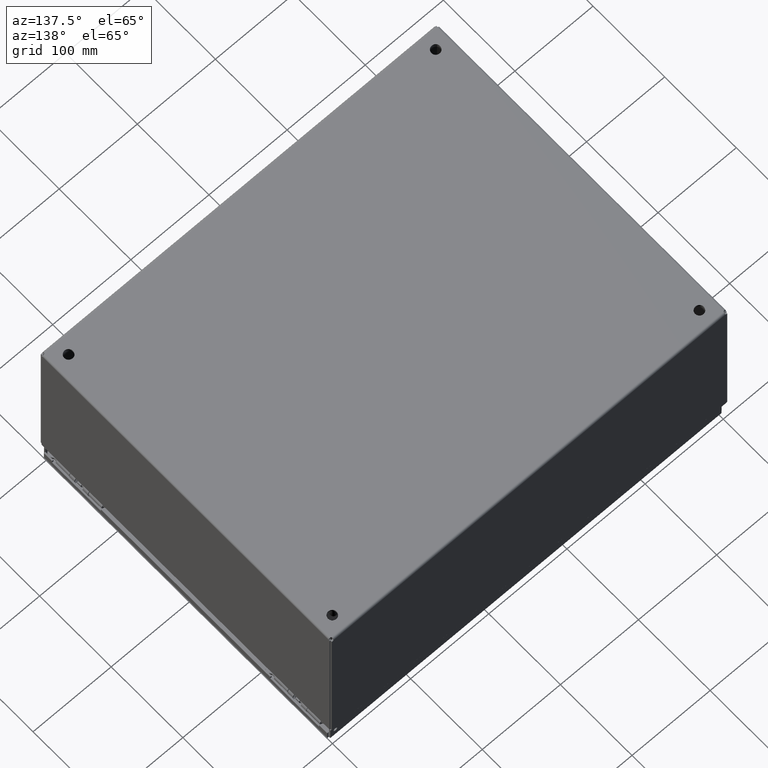
[diagram: clean part render]
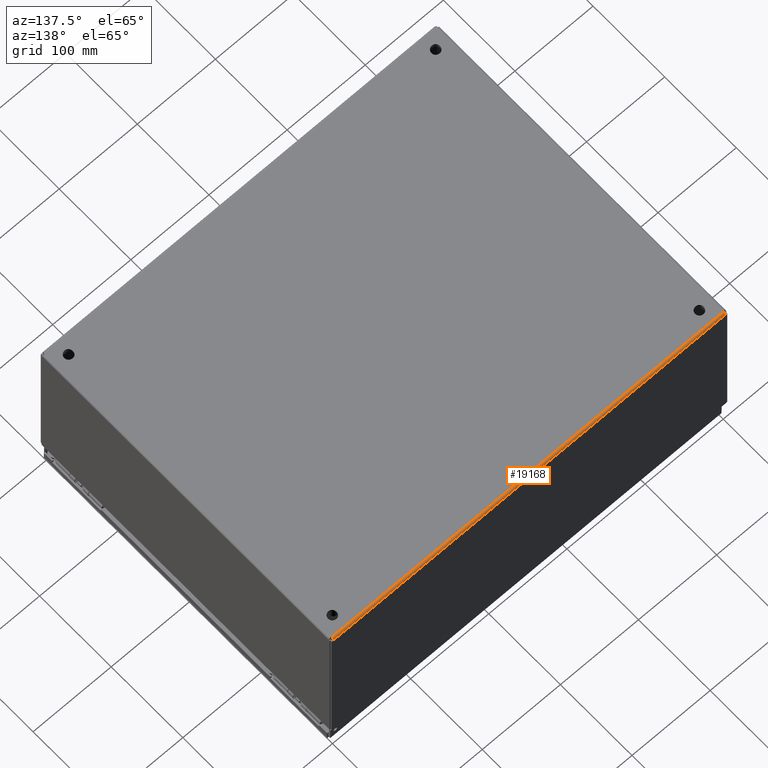
[diagram: same view with one face highlighted and labeled with its STEP entity id]
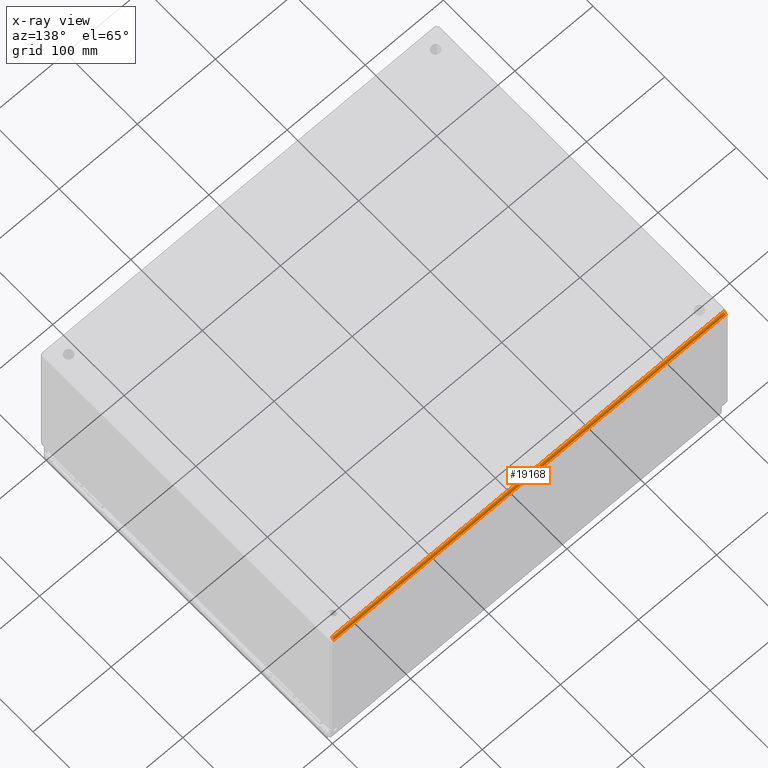
[diagram: x-ray of the same camera — body ghosted, the highlighted face saturated]
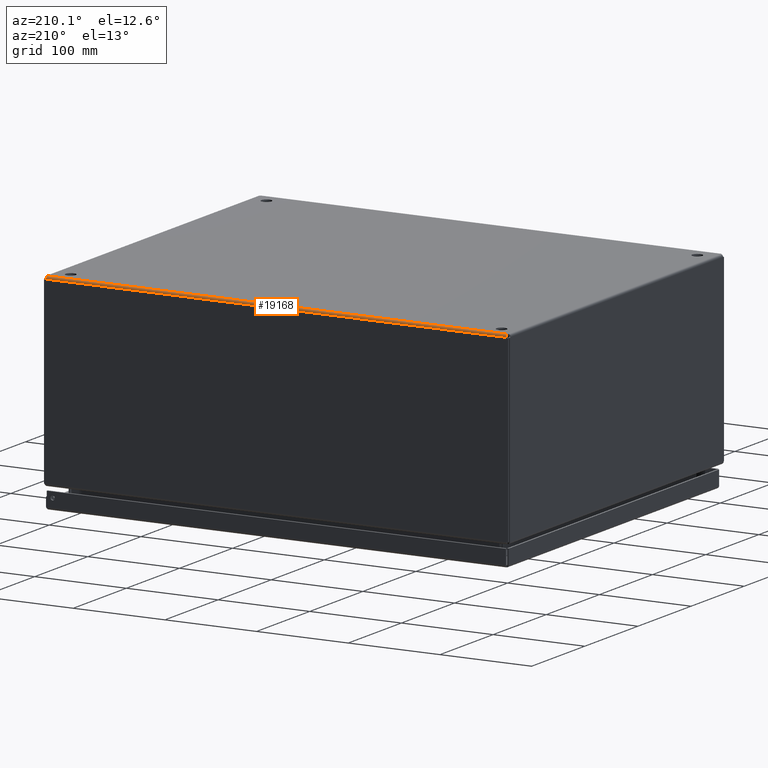
[diagram: same view with one face highlighted and labeled with its STEP entity id]
A machine part, auxiliary view. The second image highlights one B-rep face of the part: STEP entity #19168.
The next image is the same camera in x-ray: the body ghosted, the highlighted face saturated — about 0% of this face is hidden behind the body in this view.
A second angle (auxiliary view) of the same face is appended — the face is thin or edge-on in the first view.
In plain terms, the highlighted cylindrical surface (edge-blend (fillet) strip) has radius 2.6733 mm, axis along (-1, -0, 0).
Its self-contained STEP definition (entity closure, byte-faithful):
#18867=CARTESIAN_POINT('',(19.882766839324365,16.0,0.105250000000001));
#18868=VERTEX_POINT('',#18867);
#18965=CARTESIAN_POINT('',(0.117233160675629,16.0,0.105250000000001));
#18966=VERTEX_POINT('',#18965);
#18967=CARTESIAN_POINT('',(19.882766839324368,16.000000000000004,0.105250000000001));
#18968=DIRECTION('',(-1.0,0.0,0.0));
#18969=VECTOR('',#18968,19.765533678648737);
#18970=LINE('',#18967,#18969);
#18971=EDGE_CURVE('',#18868,#18966,#18970,.T.);
#19017=CARTESIAN_POINT('',(0.117233160675631,15.894750000000004,0.0));
#19018=VERTEX_POINT('',#19017);
#19019=CARTESIAN_POINT('',(0.117233160675633,15.894750000000004,1.147376E-015));
#19020=CARTESIAN_POINT('',(0.122690016952624,15.908109948604318,1.412310E-015));
#19021=CARTESIAN_POINT('',(0.126798249344757,15.923545144898505,0.002650659873274));
#19022=CARTESIAN_POINT('',(0.129282995031414,15.938318015132547,0.009414203242179));
#19023=CARTESIAN_POINT('',(0.131767740718070,15.953090885366590,0.016177746611084));
#19024=CARTESIAN_POINT('',(0.132628999699250,15.967201429540484,0.027054173475620));
#19025=CARTESIAN_POINT('',(0.131785364195174,15.977528996716607,0.040274631725719));
#19026=CARTESIAN_POINT('',(0.130519910939059,15.993020347480794,0.060105319100866));
#19027=CARTESIAN_POINT('',(0.125418445091117,16.0,0.085210077093527));
#19028=CARTESIAN_POINT('',(0.117233160675629,16.0,0.105249999999999));
#19029=B_SPLINE_CURVE_WITH_KNOTS('',3,(#19019,#19020,#19021,#19022,#19023,#19024,#19025,#19026,#19027,#19028),.UNSPECIFIED.,.F.,.U.,(4,3,3,4),(-0.664052381384676,-0.284593877736281,0.094864625912122,0.664052381384727),.UNSPECIFIED.);
#19030=EDGE_CURVE('',#19018,#18966,#19029,.T.);
#19115=CARTESIAN_POINT('',(19.882766839324365,15.894750000000004,0.0));
#19116=VERTEX_POINT('',#19115);
#19123=CARTESIAN_POINT('',(19.882766839324365,16.000000000000004,0.105249999999999));
#19124=CARTESIAN_POINT('',(19.877309983047375,16.000000000000004,0.091890051395684));
#19125=CARTESIAN_POINT('',(19.873201904116993,15.997349760977134,0.076455954723087));
#19126=CARTESIAN_POINT('',(19.870717267580186,15.990586624797247,0.061684067889874));
#19127=CARTESIAN_POINT('',(19.868232631043377,15.983823488617361,0.046912181056662));
#19128=CARTESIAN_POINT('',(19.867371436900147,15.972947455280464,0.032802504062832));
#19129=CARTESIAN_POINT('',(19.868215025889977,15.959726878099342,0.022474619695001));
#19130=CARTESIAN_POINT('',(19.869480409374731,15.939896012327660,0.006982793143254));
#19131=CARTESIAN_POINT('',(19.874581554908875,15.914789922906477,1.169231E-015));
#19132=CARTESIAN_POINT('',(19.882766839324365,15.894750000000004,1.169231E-015));
#19133=B_SPLINE_CURVE_WITH_KNOTS('',3,(#19123,#19124,#19125,#19126,#19127,#19128,#19129,#19130,#19131,#19132),.UNSPECIFIED.,.F.,.U.,(4,3,3,4),(2.477540272205055,2.856998775853461,3.236457279501867,3.805645034974475),.UNSPECIFIED.);
#19134=EDGE_CURVE('',#18868,#19116,#19133,.T.);
#19152=CARTESIAN_POINT('',(19.882766839324365,15.894750000000004,0.105250000000000));
#19153=DIRECTION('',(1.0,0.0,0.0));
#19154=DIRECTION('',(0.0,1.0,0.0));
#19155=AXIS2_PLACEMENT_3D('',#19152,#19153,#19154);
#19156=CYLINDRICAL_SURFACE('',#19155,0.105249999999998);
#19157=ORIENTED_EDGE('',*,*,#18971,.F.);
#19158=ORIENTED_EDGE('',*,*,#19134,.T.);
#19159=CARTESIAN_POINT('',(0.117233160675632,15.894750000000004,0.0));
#19160=DIRECTION('',(1.0,0.0,0.0));
#19161=VECTOR('',#19160,19.765533678648733);
#19162=LINE('',#19159,#19161);
#19163=EDGE_CURVE('',#19018,#19116,#19162,.T.);
#19164=ORIENTED_EDGE('',*,*,#19163,.F.);
#19165=ORIENTED_EDGE('',*,*,#19030,.T.);
#19166=EDGE_LOOP('',(#19157,#19158,#19164,#19165));
#19167=FACE_OUTER_BOUND('',#19166,.T.);
#19168=ADVANCED_FACE('',(#19167),#19156,.T.);